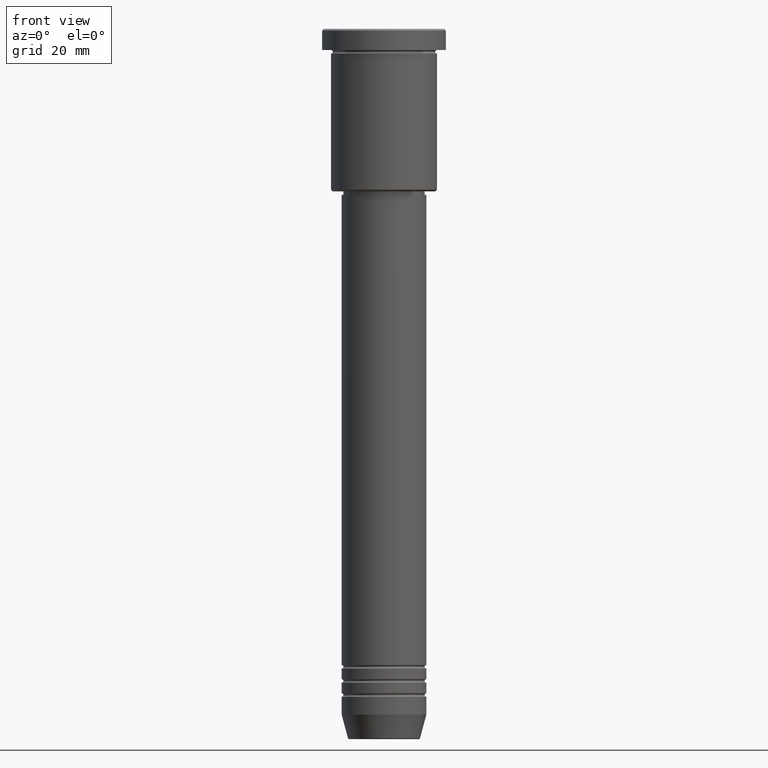
[diagram: clean part render]
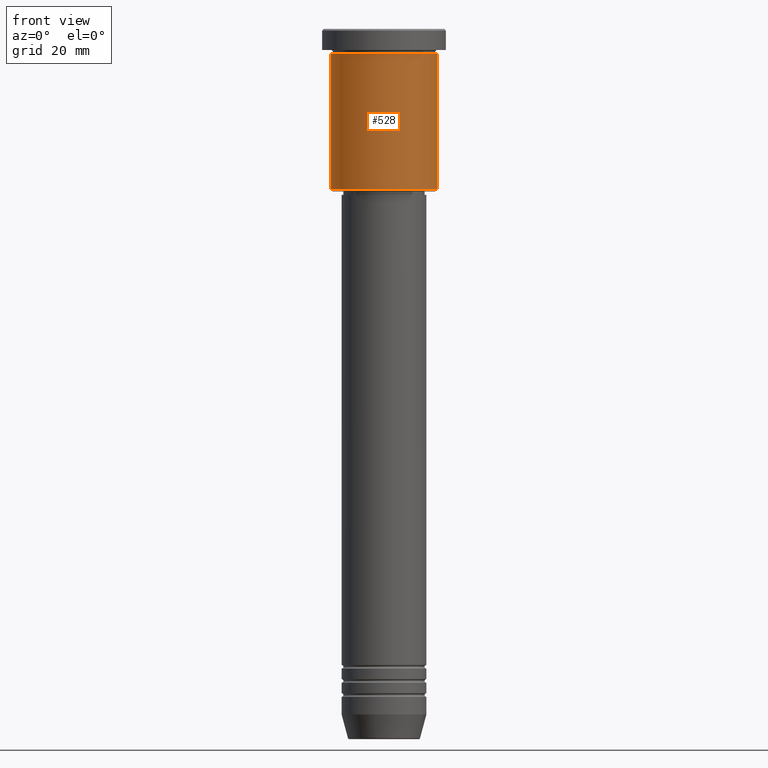
[diagram: same view with one face highlighted and labeled with its STEP entity id]
A machine part, front view. The second image highlights one B-rep face of the part: STEP entity #528.
In plain terms, the highlighted cylindrical surface (partial cylindrical patch) has radius 15 mm, axis along (-0, -0, 1).
Its self-contained STEP definition (entity closure, byte-faithful):
#32 = EDGE_CURVE ( 'NONE', #1057, #962, #517, .T. ) ;
#74 = CARTESIAN_POINT ( 'NONE',  ( -15.00000000000000000, 1.836970198721029589E-15, 0.000000000000000000 ) ) ;
#88 = CARTESIAN_POINT ( 'NONE',  ( 15.00000000000000000, 0.000000000000000000, -6.999999999999995559 ) ) ;
#90 = DIRECTION ( 'NONE',  ( -0.000000000000000000, -0.000000000000000000, 1.000000000000000000 ) ) ;
#92 = AXIS2_PLACEMENT_3D ( 'NONE', #902, #1165, #264 ) ;
#102 = CARTESIAN_POINT ( 'NONE',  ( 0.000000000000000000, 0.000000000000000000, -45.50000000000000000 ) ) ;
#122 = AXIS2_PLACEMENT_3D ( 'NONE', #102, #384, #937 ) ;
#133 = ORIENTED_EDGE ( 'NONE', *, *, #32, .F. ) ;
#225 = DIRECTION ( 'NONE',  ( -0.000000000000000000, -0.000000000000000000, 1.000000000000000000 ) ) ;
#250 = ORIENTED_EDGE ( 'NONE', *, *, #748, .F. ) ;
#264 = DIRECTION ( 'NONE',  ( 1.000000000000000000, 0.000000000000000000, 0.000000000000000000 ) ) ;
#384 = DIRECTION ( 'NONE',  ( -0.000000000000000000, -0.000000000000000000, 1.000000000000000000 ) ) ;
#437 = CYLINDRICAL_SURFACE ( 'NONE', #619, 15.00000000000000000 ) ;
#497 = CARTESIAN_POINT ( 'NONE',  ( 0.000000000000000000, 0.000000000000000000, 0.000000000000000000 ) ) ;
#517 = LINE ( 'NONE', #74, #806 ) ;
#528 = ADVANCED_FACE ( 'NONE', ( #884 ), #437, .T. ) ;
#542 = VECTOR ( 'NONE', #1036, 1000.000000000000000 ) ;
#576 = CIRCLE ( 'NONE', #92, 15.00000000000000000 ) ;
#619 = AXIS2_PLACEMENT_3D ( 'NONE', #497, #225, #1061 ) ;
#656 = EDGE_CURVE ( 'NONE', #734, #750, #1125, .T. ) ;
#665 = EDGE_LOOP ( 'NONE', ( #133, #720, #1032, #250 ) ) ;
#670 = CARTESIAN_POINT ( 'NONE',  ( 15.00000000000000000, 0.000000000000000000, 0.000000000000000000 ) ) ;
#720 = ORIENTED_EDGE ( 'NONE', *, *, #958, .T. ) ;
#734 = VERTEX_POINT ( 'NONE', #1152 ) ;
#748 = EDGE_CURVE ( 'NONE', #962, #750, #576, .T. ) ;
#750 = VERTEX_POINT ( 'NONE', #88 ) ;
#806 = VECTOR ( 'NONE', #90, 1000.000000000000000 ) ;
#819 = CARTESIAN_POINT ( 'NONE',  ( -15.00000000000000000, 1.836970198721029589E-15, -6.999999999999995559 ) ) ;
#871 = CARTESIAN_POINT ( 'NONE',  ( -15.00000000000000000, 1.836970198721029589E-15, -45.50000000000000000 ) ) ;
#884 = FACE_OUTER_BOUND ( 'NONE', #665, .T. ) ;
#902 = CARTESIAN_POINT ( 'NONE',  ( 0.000000000000000000, 0.000000000000000000, -6.999999999999995559 ) ) ;
#937 = DIRECTION ( 'NONE',  ( -1.000000000000000000, 0.000000000000000000, 0.000000000000000000 ) ) ;
#958 = EDGE_CURVE ( 'NONE', #1057, #734, #985, .T. ) ;
#962 = VERTEX_POINT ( 'NONE', #819 ) ;
#985 = CIRCLE ( 'NONE', #122, 15.00000000000000000 ) ;
#1032 = ORIENTED_EDGE ( 'NONE', *, *, #656, .T. ) ;
#1036 = DIRECTION ( 'NONE',  ( -0.000000000000000000, -0.000000000000000000, 1.000000000000000000 ) ) ;
#1057 = VERTEX_POINT ( 'NONE', #871 ) ;
#1061 = DIRECTION ( 'NONE',  ( 1.000000000000000000, 0.000000000000000000, 0.000000000000000000 ) ) ;
#1125 = LINE ( 'NONE', #670, #542 ) ;
#1152 = CARTESIAN_POINT ( 'NONE',  ( 15.00000000000000000, 0.000000000000000000, -45.50000000000000000 ) ) ;
#1165 = DIRECTION ( 'NONE',  ( -0.000000000000000000, -0.000000000000000000, 1.000000000000000000 ) ) ;